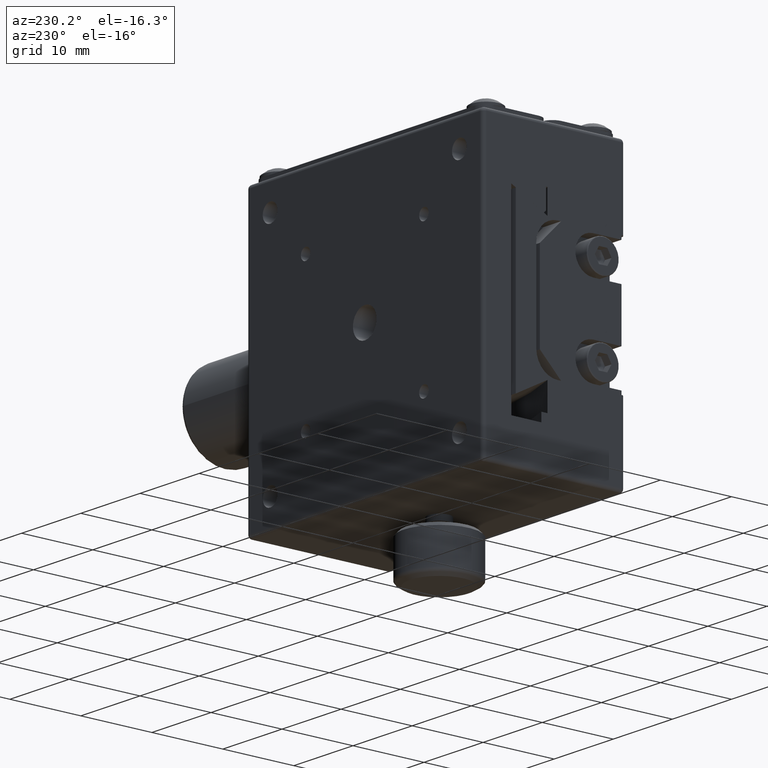
[diagram: clean part render]
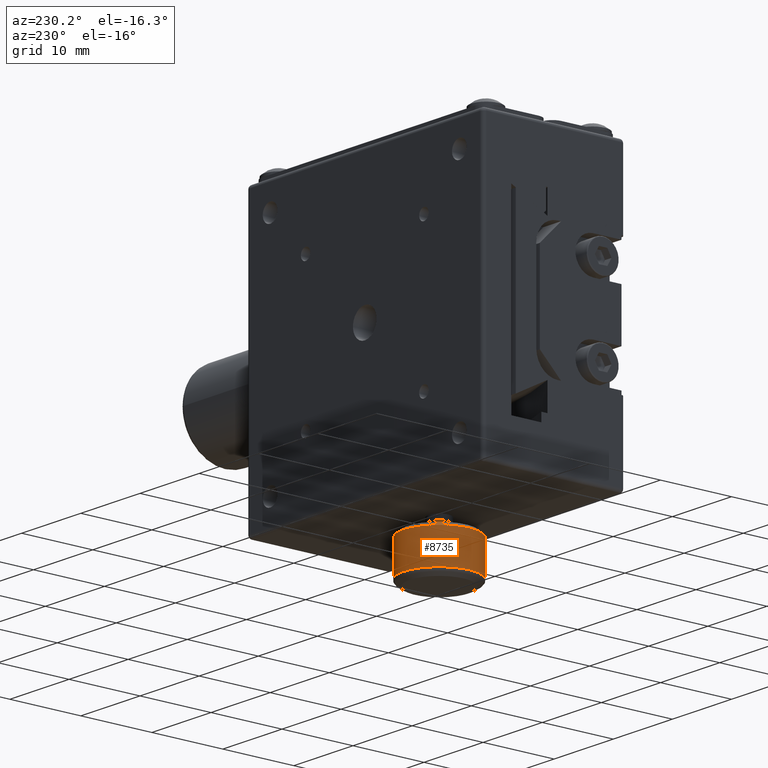
[diagram: same view with one face highlighted and labeled with its STEP entity id]
A machine part, auxiliary view. The second image highlights one B-rep face of the part: STEP entity #8735.
In plain terms, the highlighted cylindrical surface (partial cylindrical patch) has radius 5 mm, axis along (0, -0, 1).
Its self-contained STEP definition (entity closure, byte-faithful):
#831 = CYLINDRICAL_SURFACE ( 'NONE', #18069, 5.000000000000000888 ) ;
#1345 = DIRECTION ( 'NONE',  ( 0.7142683471996440492, 0.6998719369918249278, 0.000000000000000000 ) ) ;
#1392 = EDGE_CURVE ( 'NONE', #25476, #21750, #2362, .T. ) ;
#1503 = CARTESIAN_POINT ( 'NONE',  ( -3.571341735998224909, 26.00064031504089712, -22.29984303491604791 ) ) ;
#1780 = AXIS2_PLACEMENT_3D ( 'NONE', #4641, #10774, #4342 ) ;
#2334 = CIRCLE ( 'NONE', #5618, 5.000000000000000000 ) ;
#2362 = LINE ( 'NONE', #28808, #3403 ) ;
#2738 = CARTESIAN_POINT ( 'NONE',  ( 7.583358045127099480E-16, 29.50000000000000000, 20.16522203014899617 ) ) ;
#3403 = VECTOR ( 'NONE', #22817, 1000.000000000000000 ) ;
#3947 = LINE ( 'NONE', #12856, #13983 ) ;
#4342 = DIRECTION ( 'NONE',  ( 0.7142683471996440492, 0.6998719369918249278, 0.000000000000000000 ) ) ;
#4641 = CARTESIAN_POINT ( 'NONE',  ( -4.466305754360839423E-15, 29.50000000000000000, -27.01116790032120107 ) ) ;
#5227 = DIRECTION ( 'NONE',  ( 7.143418337831510193E-17, -7.290358906872630015E-17, 1.000000000000000000 ) ) ;
#5618 = AXIS2_PLACEMENT_3D ( 'NONE', #26320, #19463, #1345 ) ;
#5954 = CARTESIAN_POINT ( 'NONE',  ( 3.571341735998220468, 32.99935968495915262, -22.29984303491604791 ) ) ;
#7810 = EDGE_CURVE ( 'NONE', #25476, #21542, #9705, .T. ) ;
#8469 = DIRECTION ( 'NONE',  ( 1.107469555549663891E-16, -3.438318407015389550E-17, 1.000000000000000000 ) ) ;
#8735 = ADVANCED_FACE ( 'NONE', ( #11936 ), #831, .T. ) ;
#8820 = CARTESIAN_POINT ( 'NONE',  ( 3.571341735998215139, 32.99935968495915262, -27.01116790032120107 ) ) ;
#9705 = CIRCLE ( 'NONE', #1780, 5.000000000000000000 ) ;
#10774 = DIRECTION ( 'NONE',  ( -7.143418337831520054E-17, 7.290358906872630015E-17, -1.000000000000000000 ) ) ;
#11936 = FACE_OUTER_BOUND ( 'NONE', #26475, .T. ) ;
#12856 = CARTESIAN_POINT ( 'NONE',  ( 3.571341735998224909, 32.99935968495915262, 20.16522203014899617 ) ) ;
#13544 = DIRECTION ( 'NONE',  ( -0.7142683471996447153, -0.6998719369918240396, 0.000000000000000000 ) ) ;
#13983 = VECTOR ( 'NONE', #8469, 1000.000000000000000 ) ;
#15304 = ORIENTED_EDGE ( 'NONE', *, *, #15943, .T. ) ;
#15943 = EDGE_CURVE ( 'NONE', #21750, #22902, #2334, .T. ) ;
#17465 = ORIENTED_EDGE ( 'NONE', *, *, #25186, .F. ) ;
#18069 = AXIS2_PLACEMENT_3D ( 'NONE', #2738, #5227, #13544 ) ;
#19463 = DIRECTION ( 'NONE',  ( -7.143418337831520054E-17, 7.290358906872630015E-17, -1.000000000000000000 ) ) ;
#20549 = CARTESIAN_POINT ( 'NONE',  ( -3.571341735998230238, 26.00064031504089712, -27.01116790032120107 ) ) ;
#21542 = VERTEX_POINT ( 'NONE', #8820 ) ;
#21750 = VERTEX_POINT ( 'NONE', #1503 ) ;
#22817 = DIRECTION ( 'NONE',  ( 1.107469555549663891E-16, -3.438318407015389550E-17, 1.000000000000000000 ) ) ;
#22902 = VERTEX_POINT ( 'NONE', #5954 ) ;
#25186 = EDGE_CURVE ( 'NONE', #21542, #22902, #3947, .T. ) ;
#25387 = ORIENTED_EDGE ( 'NONE', *, *, #7810, .F. ) ;
#25476 = VERTEX_POINT ( 'NONE', #20549 ) ;
#25663 = ORIENTED_EDGE ( 'NONE', *, *, #1392, .T. ) ;
#26320 = CARTESIAN_POINT ( 'NONE',  ( -3.944540868886805085E-15, 29.50000000000000000, -22.29984303491604791 ) ) ;
#26475 = EDGE_LOOP ( 'NONE', ( #17465, #25387, #25663, #15304 ) ) ;
#28808 = CARTESIAN_POINT ( 'NONE',  ( -3.571341735998220468, 26.00064031504089712, 20.16522203014899617 ) ) ;